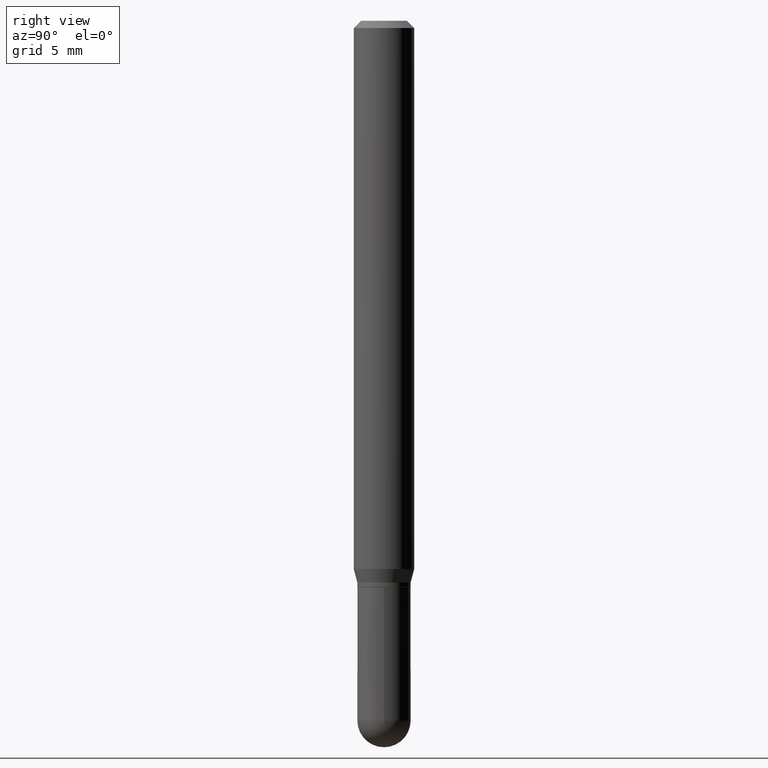
[diagram: clean part render]
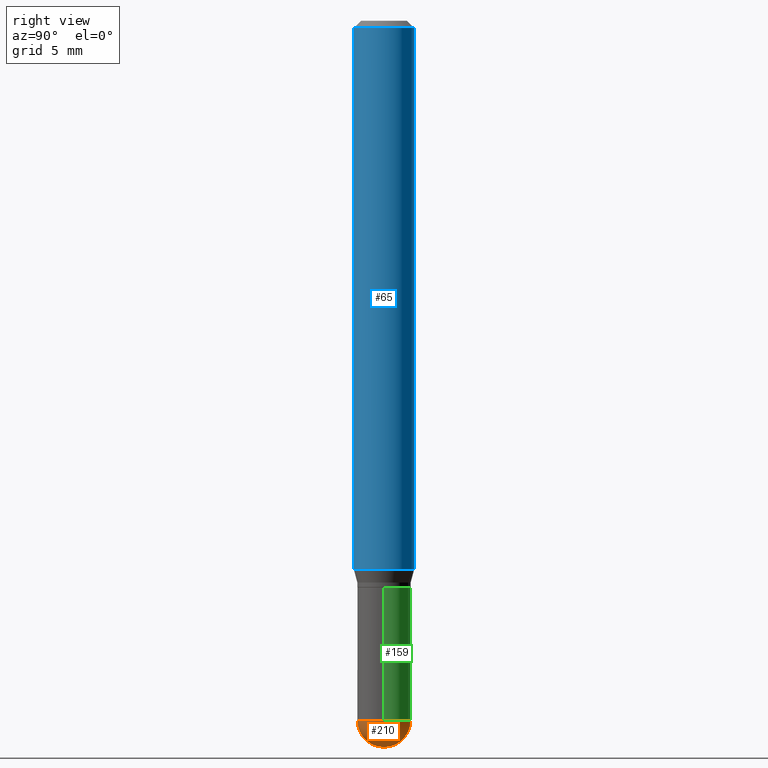
[diagram: same view with three faces highlighted in distinct colors, each labeled with its STEP entity id]
A machine part, right view with three faces highlighted in distinct colors.
Their STEP definitions:

[orange] entity #210 — the highlighted spherical surface has radius 1.397 mm.
#7 = DIRECTION ( 'NONE',  ( -2.445468806185136597E-29, 3.491481338843145583E-15, 1.000000000000000000 ) ) ;
#17 = CIRCLE ( 'NONE', #64, 0.05500000000000018763 ) ;
#20 = VERTEX_POINT ( 'NONE', #369 ) ;
#23 = CARTESIAN_POINT ( 'NONE',  ( 3.907985046680910960E-16, 0.05499999999999503897, -1.445000000000000284 ) ) ;
#32 = DIRECTION ( 'NONE',  ( 1.000000000000000000, -6.982962677686265922E-15, 4.883557194083112901E-29 ) ) ;
#45 = DIRECTION ( 'NONE',  ( -2.445468806185136597E-29, 3.491481338843145583E-15, 1.000000000000000000 ) ) ;
#64 = AXIS2_PLACEMENT_3D ( 'NONE', #118, #400, #358 ) ;
#79 = CARTESIAN_POINT ( 'NONE',  ( 3.533702424937522517E-29, -5.045190534628345684E-15, -1.445000000000000062 ) ) ;
#80 = VERTEX_POINT ( 'NONE', #496 ) ;
#81 = DIRECTION ( 'NONE',  ( 1.000000000000000000, -6.982962677686262766E-15, 0.000000000000000000 ) ) ;
#118 = CARTESIAN_POINT ( 'NONE',  ( 3.528999010347036160E-29, -5.051926092023656149E-15, -1.445000000000000062 ) ) ;
#123 = AXIS2_PLACEMENT_3D ( 'NONE', #379, #502, #509 ) ;
#139 = CIRCLE ( 'NONE', #486, 0.05500000000000000028 ) ;
#156 = ORIENTED_EDGE ( 'NONE', *, *, #416, .F. ) ;
#162 = AXIS2_PLACEMENT_3D ( 'NONE', #79, #45, #81 ) ;
#163 = DIRECTION ( 'NONE',  ( 1.000000000000000000, -6.982962677686262766E-15, 0.000000000000000000 ) ) ;
#210 = ADVANCED_FACE ( 'NONE', ( #384 ), #307, .T. ) ;
#219 = AXIS2_PLACEMENT_3D ( 'NONE', #463, #32, #348 ) ;
#223 = VERTEX_POINT ( 'NONE', #23 ) ;
#231 = VERTEX_POINT ( 'NONE', #391 ) ;
#238 = CIRCLE ( 'NONE', #123, 0.05500000000000018763 ) ;
#253 = EDGE_CURVE ( 'NONE', #80, #223, #238, .T. ) ;
#271 = CIRCLE ( 'NONE', #162, 0.05500000000000000028 ) ;
#307 = SPHERICAL_SURFACE ( 'NONE', #219, 0.05500000000000018763 ) ;
#348 = DIRECTION ( 'NONE',  ( -6.982962677686265922E-15, -1.000000000000000000, 4.966996352116824932E-15 ) ) ;
#357 = ORIENTED_EDGE ( 'NONE', *, *, #443, .F. ) ;
#358 = DIRECTION ( 'NONE',  ( -6.982962677686265922E-15, -1.000000000000000000, 0.000000000000000000 ) ) ;
#359 = ORIENTED_EDGE ( 'NONE', *, *, #402, .F. ) ;
#369 = CARTESIAN_POINT ( 'NONE',  ( -3.840629472727099789E-16, -0.05500000000000514894, -1.444999999999999840 ) ) ;
#379 = CARTESIAN_POINT ( 'NONE',  ( 3.528999010347036160E-29, -5.051926092023656149E-15, -1.445000000000000062 ) ) ;
#384 = FACE_OUTER_BOUND ( 'NONE', #474, .T. ) ;
#391 = CARTESIAN_POINT ( 'NONE',  ( 0.05500000000000000028, -4.949174797810157466E-15, -1.445000000000000062 ) ) ;
#400 = DIRECTION ( 'NONE',  ( -1.000000000000000000, 6.982962677686265922E-15, -4.883557194083112340E-29 ) ) ;
#402 = EDGE_CURVE ( 'NONE', #20, #231, #139, .T. ) ;
#416 = EDGE_CURVE ( 'NONE', #80, #20, #17, .T. ) ;
#443 = EDGE_CURVE ( 'NONE', #231, #223, #271, .T. ) ;
#463 = CARTESIAN_POINT ( 'NONE',  ( 3.528999010347036160E-29, -5.051926092023656149E-15, -1.445000000000000062 ) ) ;
#474 = EDGE_LOOP ( 'NONE', ( #156, #481, #357, #359 ) ) ;
#476 = CARTESIAN_POINT ( 'NONE',  ( 3.533702424937522517E-29, -5.045190534628345684E-15, -1.445000000000000062 ) ) ;
#481 = ORIENTED_EDGE ( 'NONE', *, *, #253, .T. ) ;
#486 = AXIS2_PLACEMENT_3D ( 'NONE', #476, #7, #163 ) ;
#496 = CARTESIAN_POINT ( 'NONE',  ( 3.661148087391975640E-29, -5.247325344357685057E-15, -1.500000000000000222 ) ) ;
#502 = DIRECTION ( 'NONE',  ( 1.000000000000000000, -7.105427357601001070E-15, 4.926315508542082329E-29 ) ) ;
#509 = DIRECTION ( 'NONE',  ( 7.105427357601001070E-15, 1.000000000000000000, 0.000000000000000000 ) ) ;

[blue] entity #65 — the highlighted cylindrical surface (edge-blend (fillet) strip) has radius 1.5875 mm, axis along (-0, 0, 1).
#10 = CIRCLE ( 'NONE', #364, 0.06250000000000000000 ) ;
#15 = VECTOR ( 'NONE', #208, 39.37007874015748143 ) ;
#18 = EDGE_CURVE ( 'NONE', #38, #347, #21, .T. ) ;
#21 = LINE ( 'NONE', #50, #29 ) ;
#25 = DIRECTION ( 'NONE',  ( -6.982962677686265922E-15, -1.000000000000000000, 3.483106191921935554E-15 ) ) ;
#29 = VECTOR ( 'NONE', #377, 39.37007874015748143 ) ;
#37 = CARTESIAN_POINT ( 'NONE',  ( -4.364351673553912750E-16, -0.06250000000000005551, -0.01500000000000011047 ) ) ;
#38 = VERTEX_POINT ( 'NONE', #251 ) ;
#50 = CARTESIAN_POINT ( 'NONE',  ( -4.364351673553916201E-16, -0.06250000000000000000, 2.182077805218689648E-16 ) ) ;
#53 = CYLINDRICAL_SURFACE ( 'NONE', #378, 0.06250000000000000000 ) ;
#65 = ADVANCED_FACE ( 'NONE', ( #336 ), #53, .T. ) ;
#88 = EDGE_LOOP ( 'NONE', ( #421, #285, #312, #264 ) ) ;
#111 = LINE ( 'NONE', #275, #15 ) ;
#124 = EDGE_CURVE ( 'NONE', #347, #288, #10, .T. ) ;
#154 = CIRCLE ( 'NONE', #451, 0.06250000000000000000 ) ;
#177 = CARTESIAN_POINT ( 'NONE',  ( 0.000000000000000000, 0.000000000000000000, 0.000000000000000000 ) ) ;
#193 = CARTESIAN_POINT ( 'NONE',  ( 4.440892098500901277E-16, 0.06249999999999603789, -1.132009618943234264 ) ) ;
#208 = DIRECTION ( 'NONE',  ( -2.445578334299165649E-29, 3.491324488349903437E-15, 1.000000000000000000 ) ) ;
#214 = EDGE_CURVE ( 'NONE', #38, #438, #154, .T. ) ;
#215 = CARTESIAN_POINT ( 'NONE',  ( 3.668367501448828558E-31, -5.236986732524968973E-17, -0.01500000000000032904 ) ) ;
#251 = CARTESIAN_POINT ( 'NONE',  ( -4.364351673553640100E-16, -0.06250000000000395517, -1.132009618943233598 ) ) ;
#264 = ORIENTED_EDGE ( 'NONE', *, *, #18, .F. ) ;
#268 = CARTESIAN_POINT ( 'NONE',  ( 4.440892098500904235E-16, 0.06249999999999995143, -0.01500000000000054588 ) ) ;
#275 = CARTESIAN_POINT ( 'NONE',  ( 4.440892098500625669E-16, 0.06250000000000000000, -2.182077805218689648E-16 ) ) ;
#285 = ORIENTED_EDGE ( 'NONE', *, *, #475, .T. ) ;
#288 = VERTEX_POINT ( 'NONE', #268 ) ;
#312 = ORIENTED_EDGE ( 'NONE', *, *, #124, .F. ) ;
#328 = DIRECTION ( 'NONE',  ( -2.445578334299165369E-29, 3.491324488349903437E-15, 1.000000000000000000 ) ) ;
#336 = FACE_OUTER_BOUND ( 'NONE', #88, .T. ) ;
#344 = DIRECTION ( 'NONE',  ( -2.445578334299165369E-29, 3.491324488349903437E-15, 1.000000000000000000 ) ) ;
#347 = VERTEX_POINT ( 'NONE', #37 ) ;
#364 = AXIS2_PLACEMENT_3D ( 'NONE', #215, #375, #25 ) ;
#373 = DIRECTION ( 'NONE',  ( -6.982962677686265922E-15, -1.000000000000000000, 3.491324488349903437E-15 ) ) ;
#375 = DIRECTION ( 'NONE',  ( -2.445578334299165369E-29, 3.491324488349903437E-15, 1.000000000000000000 ) ) ;
#377 = DIRECTION ( 'NONE',  ( -2.445578334299165649E-29, 3.491324488349903437E-15, 1.000000000000000000 ) ) ;
#378 = AXIS2_PLACEMENT_3D ( 'NONE', #177, #328, #373 ) ;
#421 = ORIENTED_EDGE ( 'NONE', *, *, #214, .T. ) ;
#426 = CARTESIAN_POINT ( 'NONE',  ( 2.768418198305827226E-29, -3.952212903664154629E-15, -1.132009618943233820 ) ) ;
#438 = VERTEX_POINT ( 'NONE', #193 ) ;
#451 = AXIS2_PLACEMENT_3D ( 'NONE', #426, #344, #459 ) ;
#459 = DIRECTION ( 'NONE',  ( -6.982962677686265922E-15, -1.000000000000000000, 4.370956789862821150E-15 ) ) ;
#475 = EDGE_CURVE ( 'NONE', #438, #288, #111, .T. ) ;

[green] entity #159 — the highlighted cylindrical surface (edge-blend (fillet) strip) has radius 1.397 mm, axis along (-0, 0, 1).
#23 = CARTESIAN_POINT ( 'NONE',  ( 3.907985046680910960E-16, 0.05499999999999503897, -1.445000000000000284 ) ) ;
#27 = DIRECTION ( 'NONE',  ( -2.445468806185136597E-29, 3.491481338843145583E-15, 1.000000000000000000 ) ) ;
#30 = CARTESIAN_POINT ( 'NONE',  ( 2.861198503236610065E-29, -4.085033166446480067E-15, -1.170000000000000151 ) ) ;
#44 = CIRCLE ( 'NONE', #303, 0.05500000000000000028 ) ;
#45 = DIRECTION ( 'NONE',  ( -2.445468806185136597E-29, 3.491481338843145583E-15, 1.000000000000000000 ) ) ;
#48 = DIRECTION ( 'NONE',  ( -2.445468806185136597E-29, 3.491481338843145583E-15, 1.000000000000000000 ) ) ;
#79 = CARTESIAN_POINT ( 'NONE',  ( 3.533702424937522517E-29, -5.045190534628345684E-15, -1.445000000000000062 ) ) ;
#81 = DIRECTION ( 'NONE',  ( 1.000000000000000000, -6.982962677686262766E-15, 0.000000000000000000 ) ) ;
#82 = ORIENTED_EDGE ( 'NONE', *, *, #489, .T. ) ;
#100 = CARTESIAN_POINT ( 'NONE',  ( -0.05500000000000000028, -4.174313345869358610E-15, -1.170000000000000151 ) ) ;
#102 = LINE ( 'NONE', #507, #313 ) ;
#116 = CARTESIAN_POINT ( 'NONE',  ( 0.05500000000000000028, -3.840629472727446888E-16, 2.681897226687764826E-30 ) ) ;
#127 = CIRCLE ( 'NONE', #132, 0.05500000000000000028 ) ;
#132 = AXIS2_PLACEMENT_3D ( 'NONE', #30, #229, #309 ) ;
#133 = EDGE_CURVE ( 'NONE', #318, #233, #127, .T. ) ;
#151 = CARTESIAN_POINT ( 'NONE',  ( -0.05500000000000000028, -4.174313345869358610E-15, -1.445000000000000062 ) ) ;
#159 = ADVANCED_FACE ( 'NONE', ( #273 ), #189, .T. ) ;
#162 = AXIS2_PLACEMENT_3D ( 'NONE', #79, #45, #81 ) ;
#181 = DIRECTION ( 'NONE',  ( -2.445468806185136877E-29, 3.491481338843145188E-15, 1.000000000000000000 ) ) ;
#187 = EDGE_CURVE ( 'NONE', #278, #233, #102, .T. ) ;
#189 = CYLINDRICAL_SURFACE ( 'NONE', #462, 0.05500000000000000028 ) ;
#209 = ORIENTED_EDGE ( 'NONE', *, *, #187, .T. ) ;
#211 = ORIENTED_EDGE ( 'NONE', *, *, #133, .F. ) ;
#223 = VERTEX_POINT ( 'NONE', #23 ) ;
#229 = DIRECTION ( 'NONE',  ( -2.445468806185136597E-29, 3.491481338843145583E-15, 1.000000000000000000 ) ) ;
#231 = VERTEX_POINT ( 'NONE', #391 ) ;
#233 = VERTEX_POINT ( 'NONE', #100 ) ;
#235 = ORIENTED_EDGE ( 'NONE', *, *, #466, .F. ) ;
#245 = DIRECTION ( 'NONE',  ( -2.445468806185136877E-29, 3.491481338843145188E-15, 1.000000000000000000 ) ) ;
#250 = ORIENTED_EDGE ( 'NONE', *, *, #443, .T. ) ;
#260 = VECTOR ( 'NONE', #245, 39.37007874015748143 ) ;
#271 = CIRCLE ( 'NONE', #162, 0.05500000000000000028 ) ;
#273 = FACE_OUTER_BOUND ( 'NONE', #398, .T. ) ;
#278 = VERTEX_POINT ( 'NONE', #151 ) ;
#303 = AXIS2_PLACEMENT_3D ( 'NONE', #485, #48, #367 ) ;
#309 = DIRECTION ( 'NONE',  ( 1.000000000000000000, -6.982962677686262766E-15, 0.000000000000000000 ) ) ;
#313 = VECTOR ( 'NONE', #181, 39.37007874015748143 ) ;
#318 = VERTEX_POINT ( 'NONE', #393 ) ;
#367 = DIRECTION ( 'NONE',  ( 1.000000000000000000, -6.982962677686262766E-15, 0.000000000000000000 ) ) ;
#391 = CARTESIAN_POINT ( 'NONE',  ( 0.05500000000000000028, -4.949174797810157466E-15, -1.445000000000000062 ) ) ;
#393 = CARTESIAN_POINT ( 'NONE',  ( 0.05500000000000000028, -4.469096113719225052E-15, -1.170000000000000151 ) ) ;
#398 = EDGE_LOOP ( 'NONE', ( #82, #209, #211, #235, #250 ) ) ;
#420 = CARTESIAN_POINT ( 'NONE',  ( 0.000000000000000000, 0.000000000000000000, 0.000000000000000000 ) ) ;
#422 = DIRECTION ( 'NONE',  ( 1.000000000000000000, -6.982962677686266711E-15, 4.876176775795935793E-29 ) ) ;
#443 = EDGE_CURVE ( 'NONE', #231, #223, #271, .T. ) ;
#444 = LINE ( 'NONE', #116, #260 ) ;
#462 = AXIS2_PLACEMENT_3D ( 'NONE', #420, #27, #422 ) ;
#466 = EDGE_CURVE ( 'NONE', #231, #318, #444, .T. ) ;
#485 = CARTESIAN_POINT ( 'NONE',  ( 3.533702424937522517E-29, -5.045190534628345684E-15, -1.445000000000000062 ) ) ;
#489 = EDGE_CURVE ( 'NONE', #223, #278, #44, .T. ) ;
#507 = CARTESIAN_POINT ( 'NONE',  ( -0.05500000000000000028, 3.907985046680551042E-16, -2.705414299640198362E-30 ) ) ;